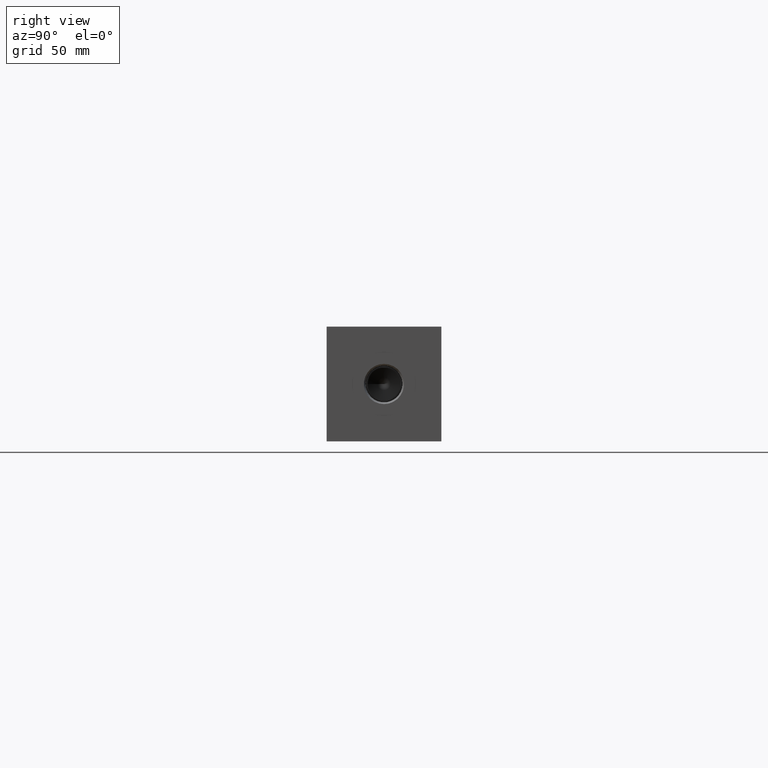
[diagram: clean part render]
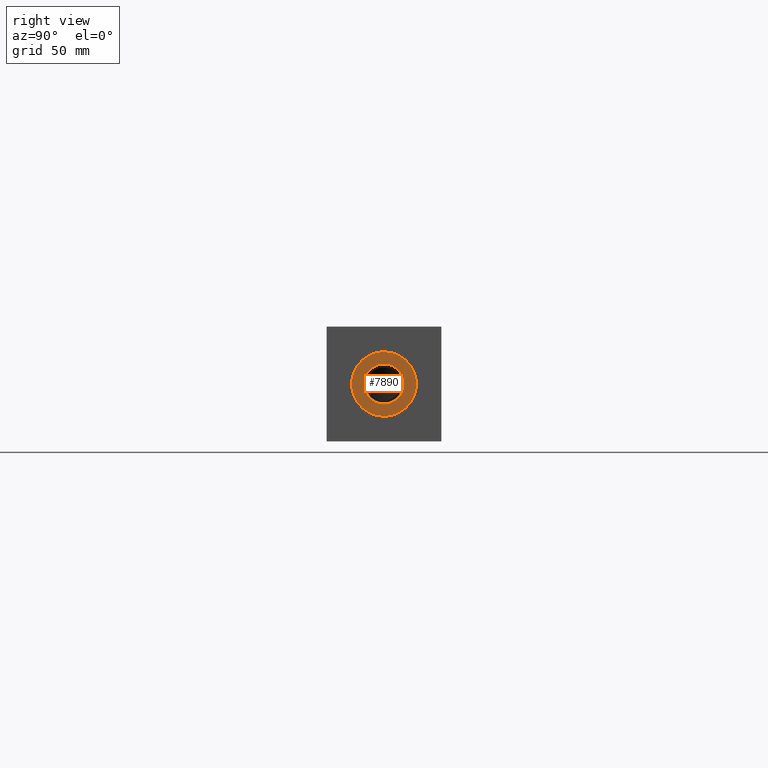
[diagram: same view with one face highlighted and labeled with its STEP entity id]
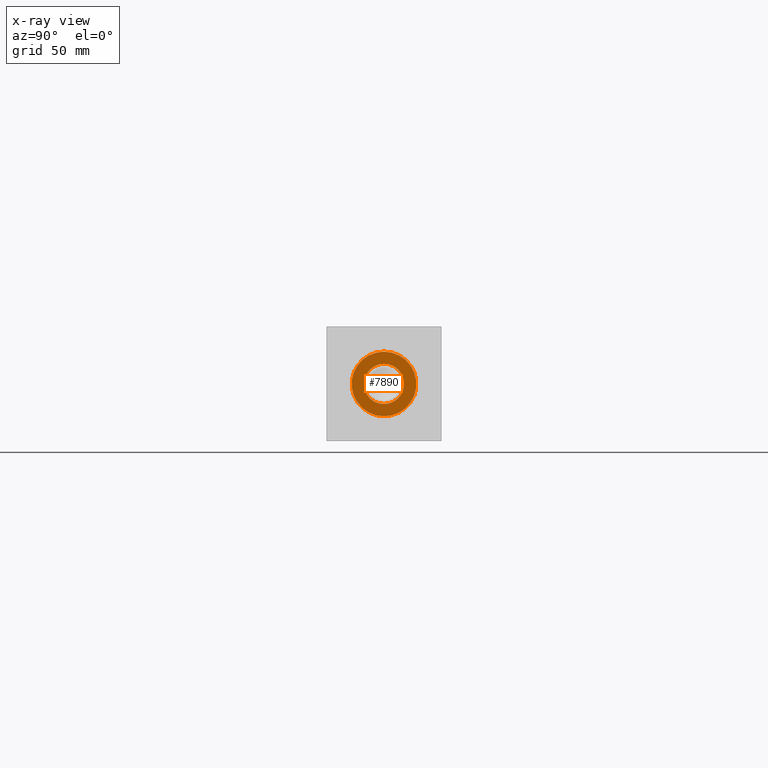
[diagram: x-ray of the same camera — body ghosted, the highlighted face saturated]
A machine part, right view. The second image highlights one B-rep face of the part: STEP entity #7890.
The next image is the same camera in x-ray: the body ghosted, the highlighted face saturated — about 0% of this face is hidden behind the body in this view.
In plain terms, the highlighted planar face has unit normal (-1, 0, 0).
Its self-contained STEP definition (entity closure, byte-faithful):
#241=CIRCLE('',#8355,12.5095);
#242=CIRCLE('',#8356,12.5095);
#243=CIRCLE('',#8358,7.7978);
#244=CIRCLE('',#8359,7.7978);
#320=FACE_BOUND('',#1494,.T.);
#1032=FACE_OUTER_BOUND('',#1493,.T.);
#1493=EDGE_LOOP('',(#6864,#6865));
#1494=EDGE_LOOP('',(#6866,#6867));
#3663=VERTEX_POINT('',#13557);
#3664=VERTEX_POINT('',#13559);
#3665=VERTEX_POINT('',#13563);
#3666=VERTEX_POINT('',#13564);
#4743=EDGE_CURVE('',#3663,#3664,#241,.T.);
#4744=EDGE_CURVE('',#3664,#3663,#242,.T.);
#4745=EDGE_CURVE('',#3665,#3666,#243,.T.);
#4746=EDGE_CURVE('',#3666,#3665,#244,.T.);
#6864=ORIENTED_EDGE('',*,*,#4744,.F.);
#6865=ORIENTED_EDGE('',*,*,#4743,.F.);
#6866=ORIENTED_EDGE('',*,*,#4745,.T.);
#6867=ORIENTED_EDGE('',*,*,#4746,.T.);
#7196=PLANE('',#8357);
#7890=ADVANCED_FACE('',(#1032,#320),#7196,.F.);
#8355=AXIS2_PLACEMENT_3D('',#13560,#9963,#9964);
#8356=AXIS2_PLACEMENT_3D('',#13561,#9965,#9966);
#8357=AXIS2_PLACEMENT_3D('',#13562,#9967,#9968);
#8358=AXIS2_PLACEMENT_3D('',#13565,#9969,#9970);
#8359=AXIS2_PLACEMENT_3D('',#13566,#9971,#9972);
#9963=DIRECTION('center_axis',(-1.,0.,0.));
#9964=DIRECTION('ref_axis',(0.,0.,1.));
#9965=DIRECTION('center_axis',(-1.,0.,0.));
#9966=DIRECTION('ref_axis',(0.,0.,1.));
#9967=DIRECTION('center_axis',(-1.,0.,0.));
#9968=DIRECTION('ref_axis',(0.,0.,1.));
#9969=DIRECTION('center_axis',(-1.,0.,0.));
#9970=DIRECTION('ref_axis',(0.,0.,1.));
#9971=DIRECTION('center_axis',(-1.,0.,0.));
#9972=DIRECTION('ref_axis',(0.,0.,1.));
#13557=CARTESIAN_POINT('',(275.4376,22.225,34.7345));
#13559=CARTESIAN_POINT('',(275.4376,22.225,9.7155));
#13560=CARTESIAN_POINT('Origin',(275.4376,22.225,22.225));
#13561=CARTESIAN_POINT('Origin',(275.4376,22.225,22.225));
#13562=CARTESIAN_POINT('Origin',(275.4376,22.225,14.4272));
#13563=CARTESIAN_POINT('',(275.4376,22.225,14.4272));
#13564=CARTESIAN_POINT('',(275.4376,22.225,30.0228));
#13565=CARTESIAN_POINT('Origin',(275.4376,22.225,22.225));
#13566=CARTESIAN_POINT('Origin',(275.4376,22.225,22.225));